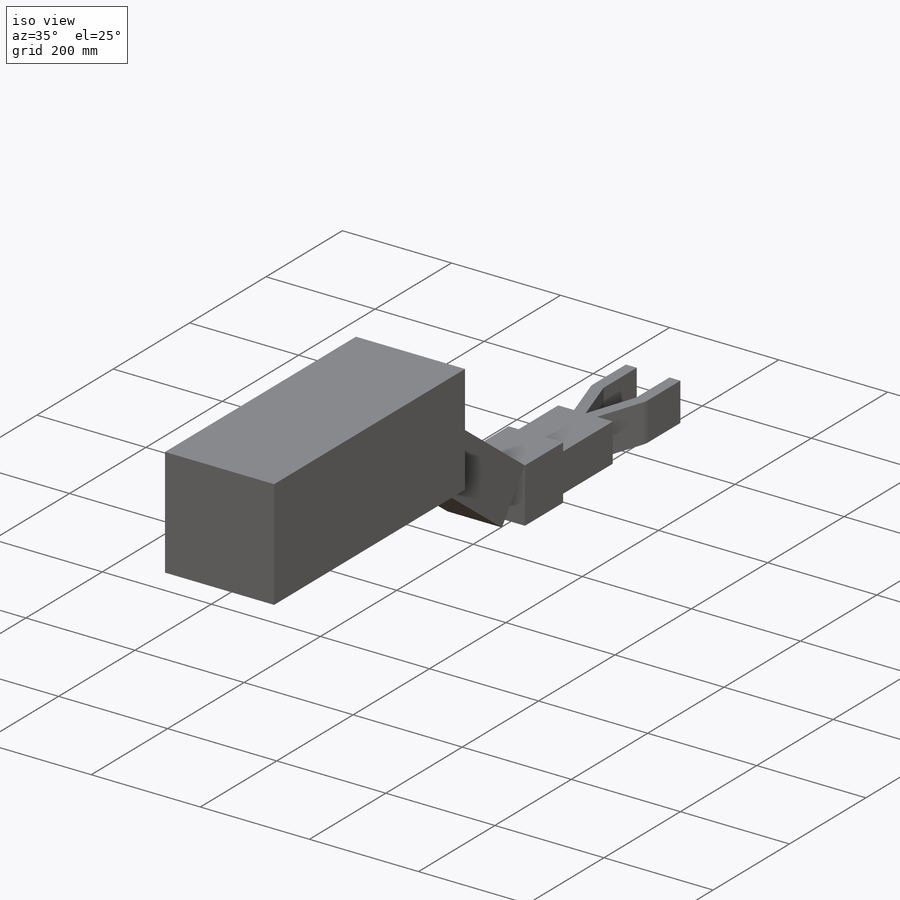
[diagram: iso view]
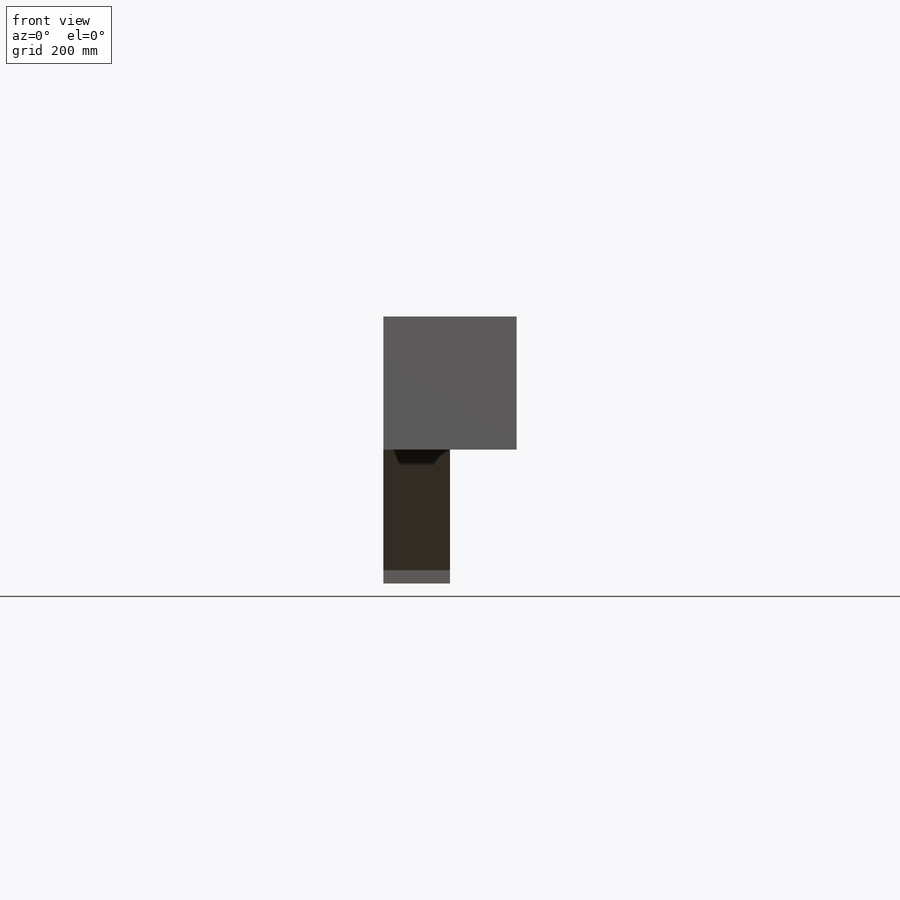
[diagram: front view]
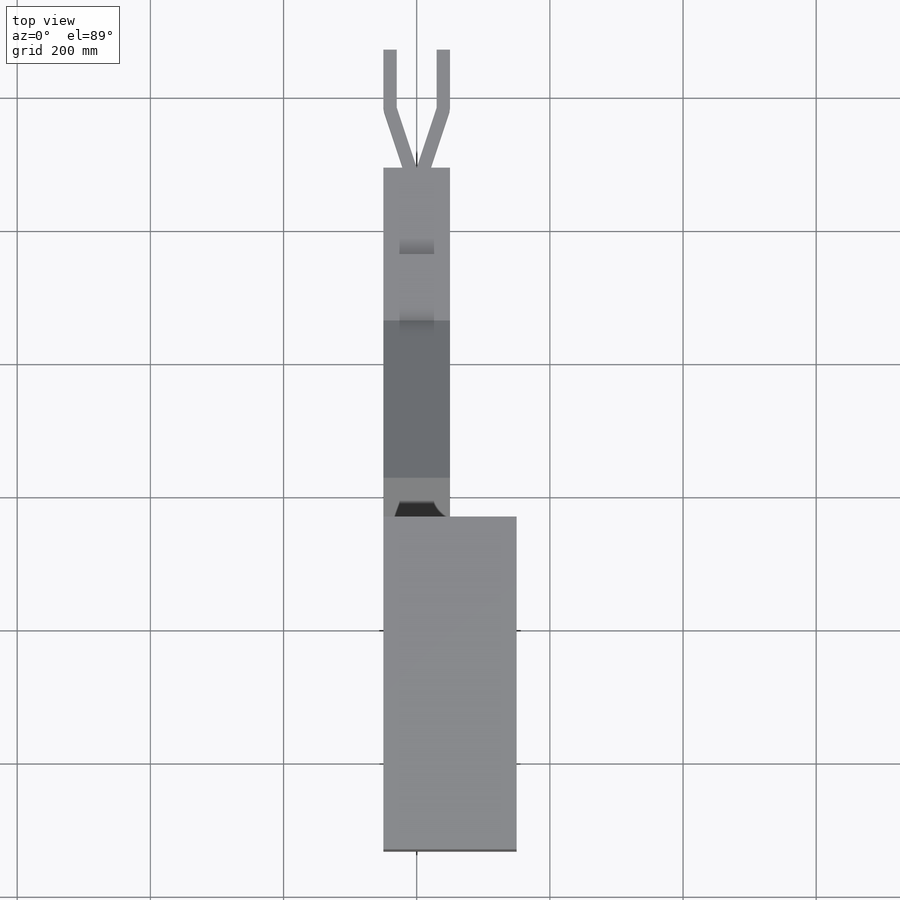
[diagram: top view]
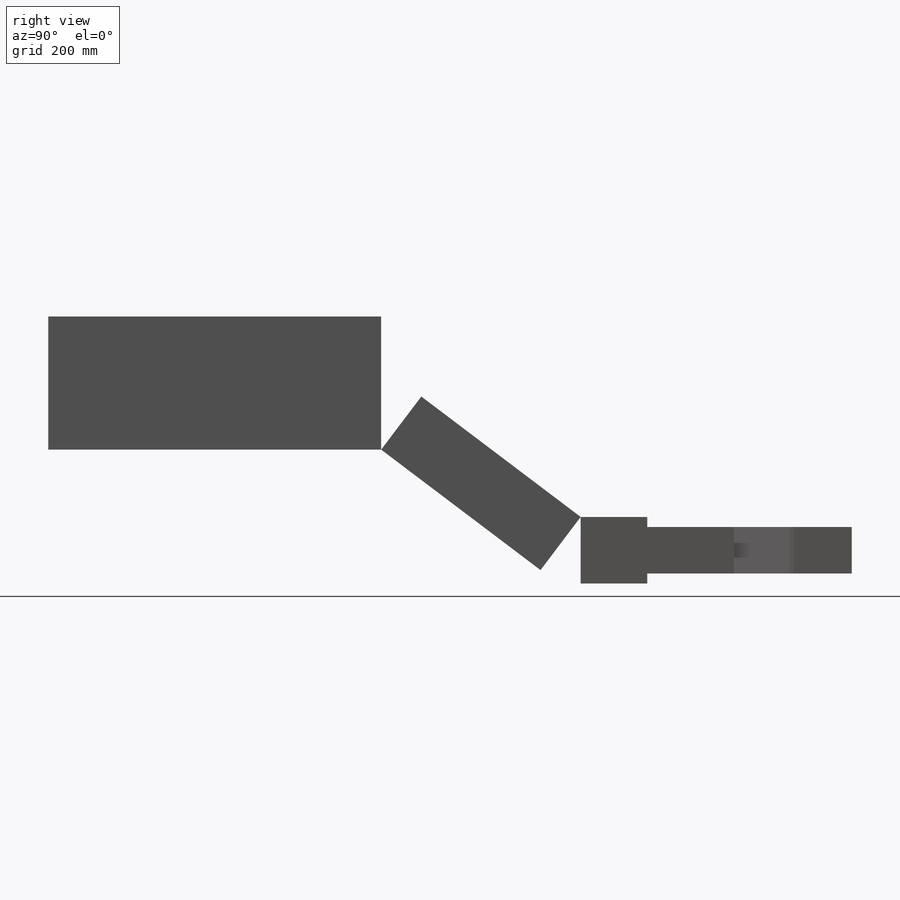
[diagram: right view]
SOLIDWORKS PART (.sldprt)
format: sldprt  version: not decoded by parser v0  size: 191,488 bytes
history: native  units: mm
features: sketch x4, extrude x4, material x1 (+11 scaffold rows collapsed)
feature tree (20):
  scaffold x11  (default folders/planes/origin — collapsed)
  material  "Material <not specified>"
  sketch  "Sketch1"  dims[c1.D1=20.0mm c1.D2=20.0mm c1.D3=60.0mm c1.D4=87.0mm c1.D5=95.0mm c1.D6=100.0mm c1.D7=130.0mm c1.D8=20.0mm c2.D8=~161.59152deg c3.D8=~20.780964mm c4.D8=~18.40848deg c5.D8=20.0mm c5.D9=20.0mm]
  extrude  "Boss-Extrude1"  Depth=70mm
  sketch  "Sketch2"  dims[D1=100.0mm D2=100.0mm]
  extrude  "Boss-Extrude2"  Depth=100mm
  sketch  "Sketch3"  dims[D1=100.0mm D2=300.0mm]
  extrude  "Boss-Extrude3"  Depth=100mm
  sketch  "Sketch4"  dims[D1=200.0mm D2=500.0mm]
  extrude  "Boss-Extrude4"  Depth=200mm
decode coverage: 8 of 8 modeling features carry decoded parameters
note: ~ marks probable driven/reference dimensions
note: suppression state not decoded; provenance and decode notes live in map.json
